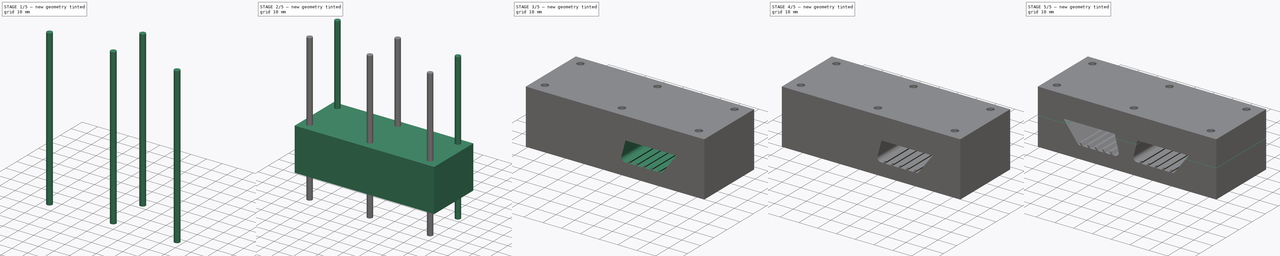
[diagram: build sequence overview — one tinted view per stage of 5, left to right]
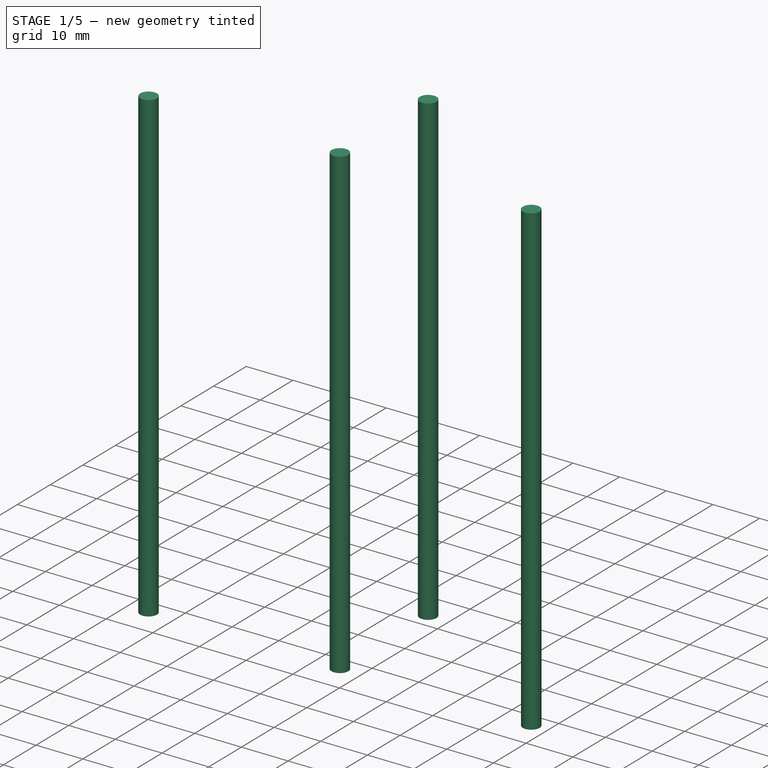
[diagram: stage 1 of 5 — iso view after this stage's code; geometry added in this stage tinted green]
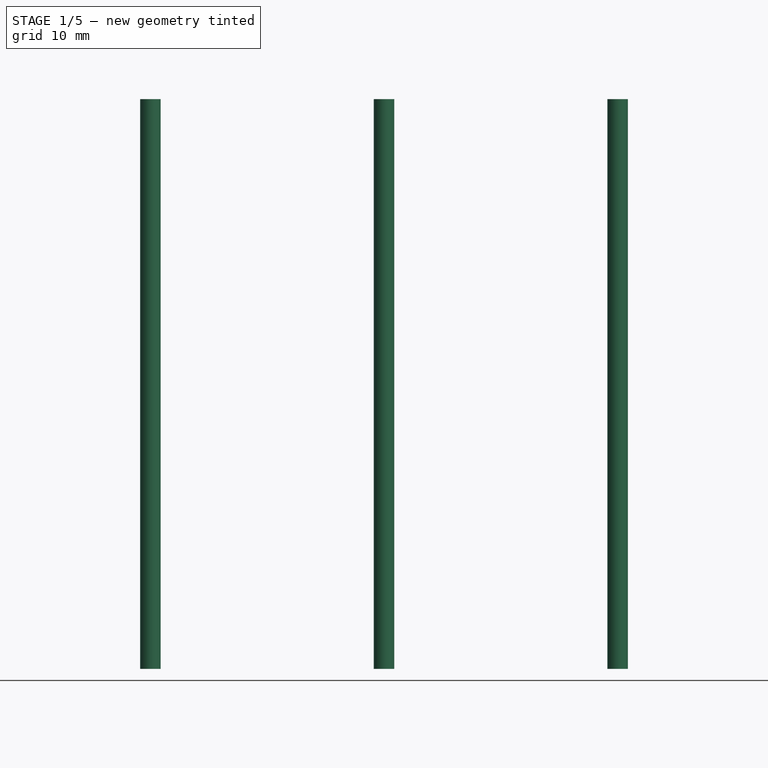
[diagram: stage 1 of 5 — front view after this stage's code; geometry added in this stage tinted green]
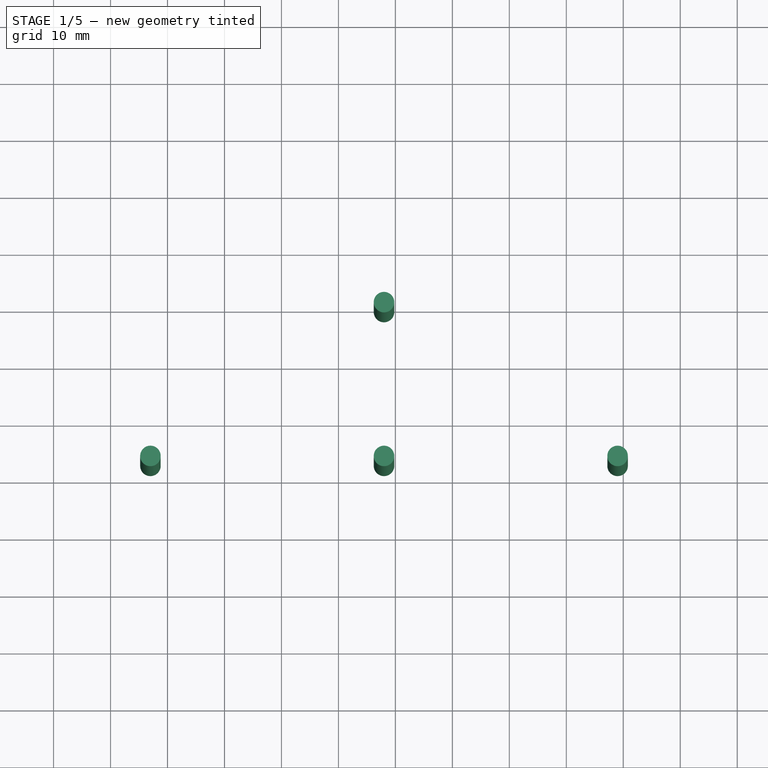
[diagram: stage 1 of 5 — top view after this stage's code; geometry added in this stage tinted green]
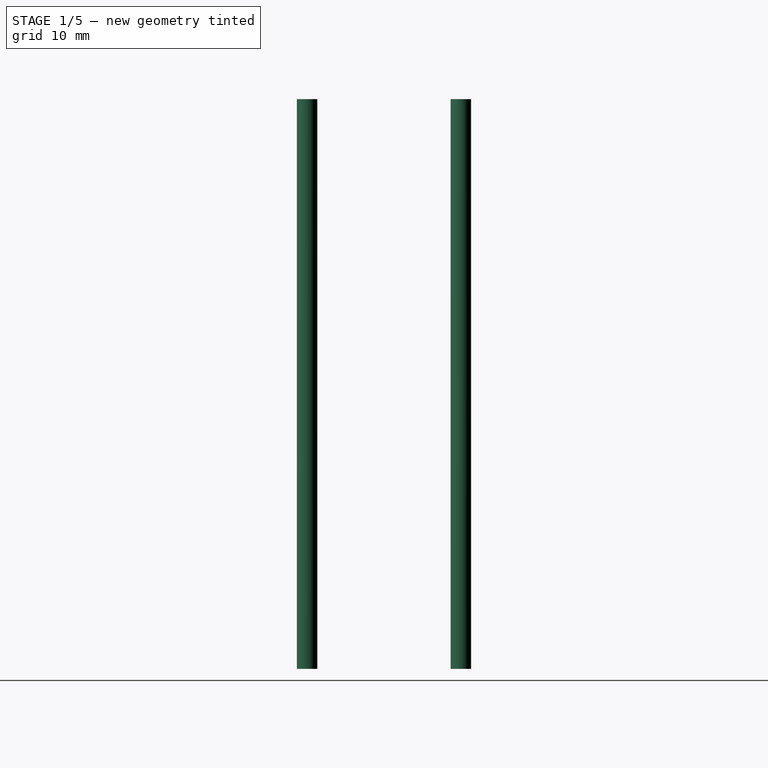
[diagram: stage 1 of 5 — right view after this stage's code; geometry added in this stage tinted green]
FCSTD DOCUMENT  (FreeCAD 0.15R4671 (Git))
Label: FEET_Mold
License: All rights reserved
LicenseURL: http://es.wikipedia.org/wiki/Todos_los_derechos_reservados
objects: Part::Cylinder×6, Part::MultiFuse×5, Part::Fillet×4, Part::Cut×4, Sketcher::SketchObject×3, PartDesign::Pad×3, Part::Box×2, Part::Mirroring×1
note: 31 computed .brp shape members not serialized (recipe doc carries the construction recipe); baked Part::Feature solids carry a one-line shape summary decoded from their .brp

FEATURE [Part::Cylinder] Cylinder002  label="Cilindro002"
  Angle = 360
  Height = 100
  Placement = pos=(38,0,-108) rot=(0,0,1;0rad)
  Radius = 1.8
FEATURE [Part::Cylinder] Cylinder003  label="Cilindro003"
  Angle = 360
  Height = 100
  Placement = pos=(-3,0,-108) rot=(0,0,1;0rad)
  Radius = 1.8
FEATURE [Part::Cylinder] Cylinder004  label="Cilindro004"
  Angle = 360
  Height = 100
  Placement = pos=(79,0,-108) rot=(0,0,1;0rad)
  Radius = 1.8
FEATURE [Part::Cylinder] Cylinder005  label="Cilindro005"
  Angle = 360
  Height = 100
  Placement = pos=(38,0,-108) rot=(0,0,1;0rad)
  Radius = 1.8
FEATURE [Part::MultiFuse] Fusion003
  Placement = pos=(0,-27,0) rot=(0,0,1;0rad)
  Shapes = -> [Cylinder004,Cylinder003,Cylinder005]
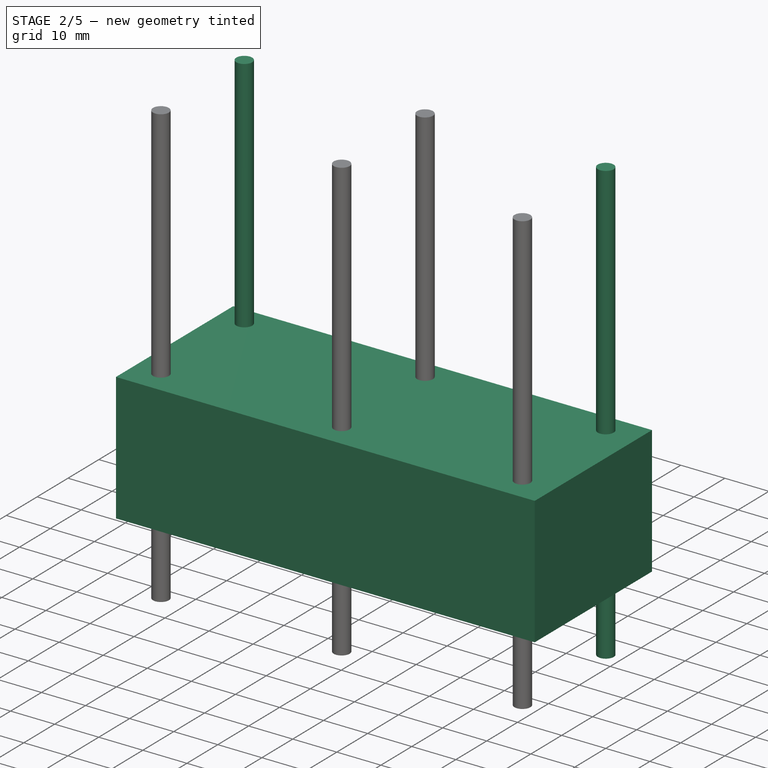
[diagram: stage 2 of 5 — iso view after this stage's code; geometry added in this stage tinted green]
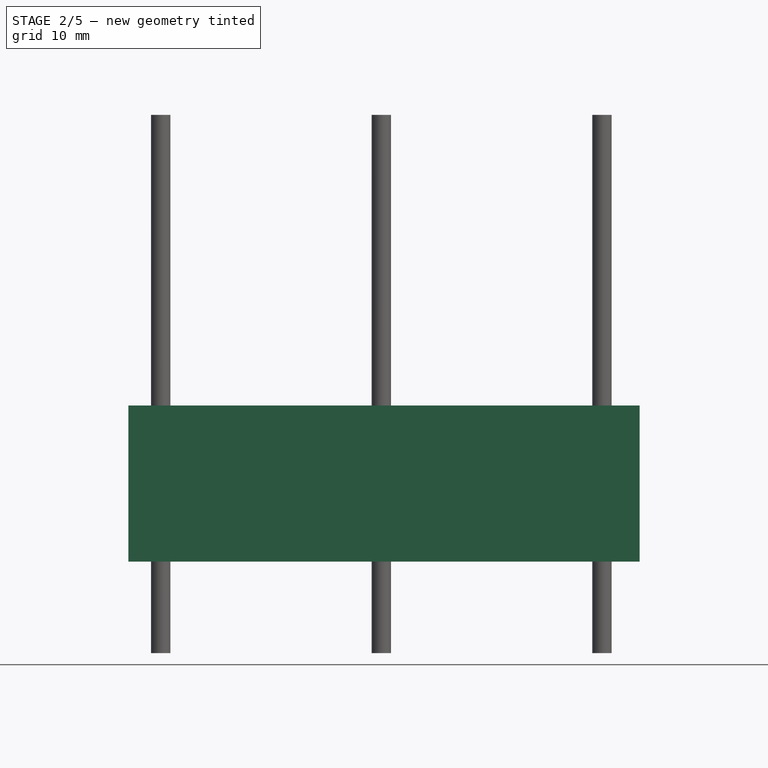
[diagram: stage 2 of 5 — front view after this stage's code; geometry added in this stage tinted green]
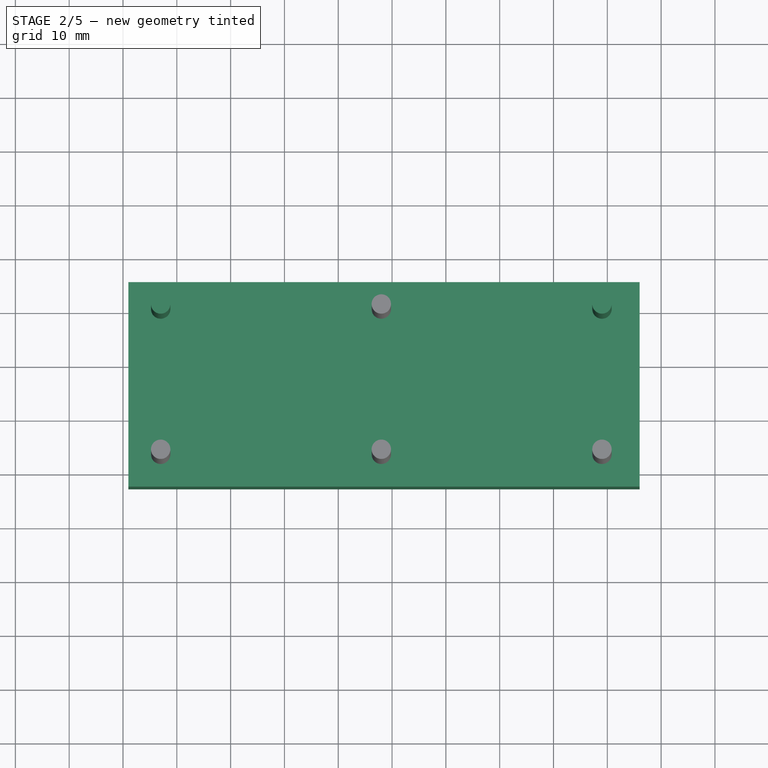
[diagram: stage 2 of 5 — top view after this stage's code; geometry added in this stage tinted green]
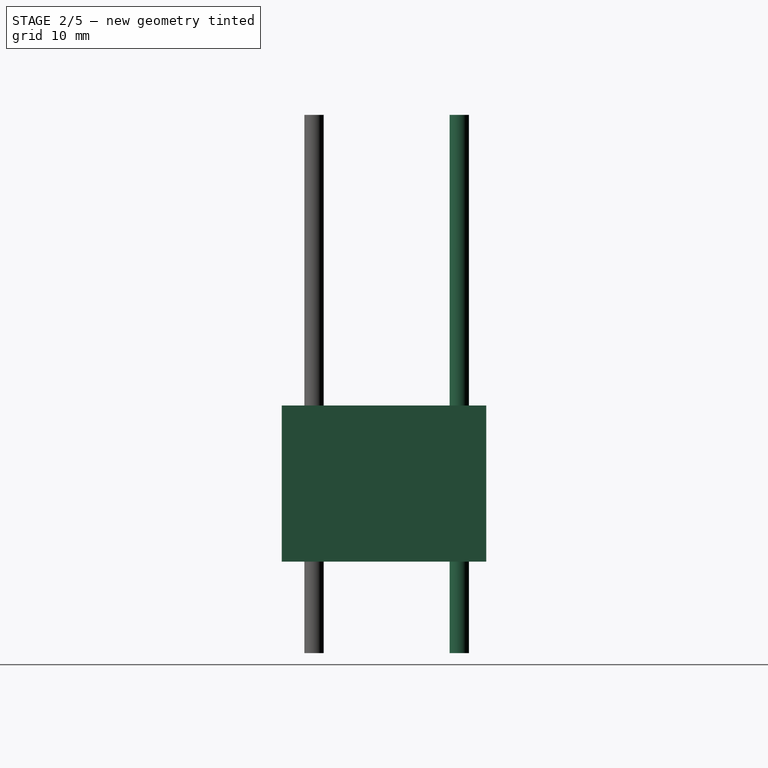
[diagram: stage 2 of 5 — right view after this stage's code; geometry added in this stage tinted green]
FEATURE [Part::Box] Box  label="Cubo"
  Height = 29
  Length = 95
  Placement = pos=(-9,-33,-91) rot=(0,0,1;0rad)
  Width = 38
FEATURE [Part::Cylinder] Cylinder  label="Cilindro"
  Angle = 360
  Height = 100
  Placement = pos=(-3,0,-108) rot=(0,0,1;0rad)
  Radius = 1.8
FEATURE [Part::Cylinder] Cylinder001  label="Cilindro001"
  Angle = 360
  Height = 100
  Placement = pos=(79,0,-108) rot=(0,0,1;0rad)
  Radius = 1.8
FEATURE [Part::MultiFuse] Fusion002
  Shapes = -> [Cylinder001,Cylinder,Cylinder002]
FEATURE [Part::MultiFuse] Fusion004
  Shapes = -> [Fusion003,Fusion002]
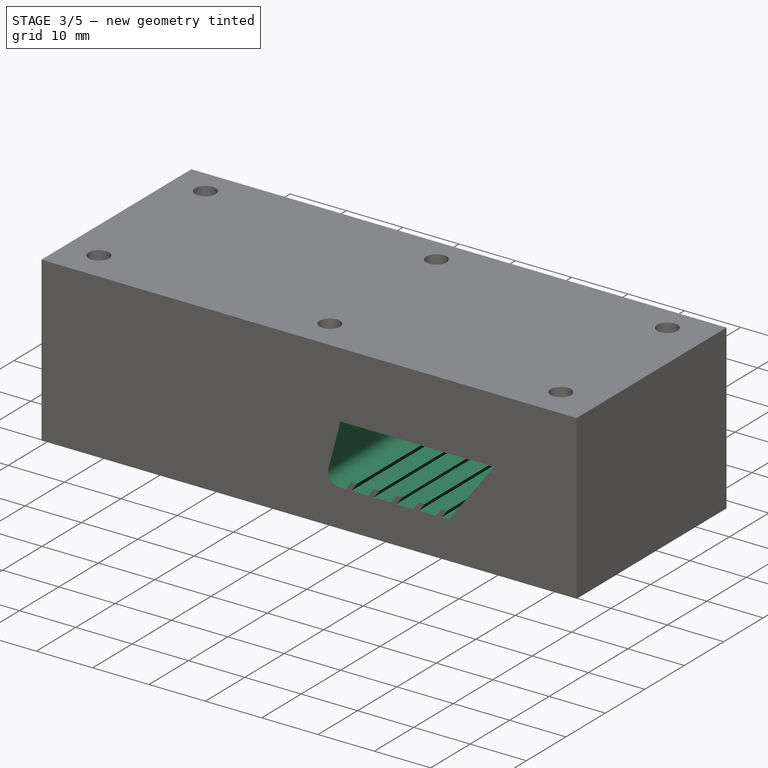
[diagram: stage 3 of 5 — iso view after this stage's code; geometry added in this stage tinted green]
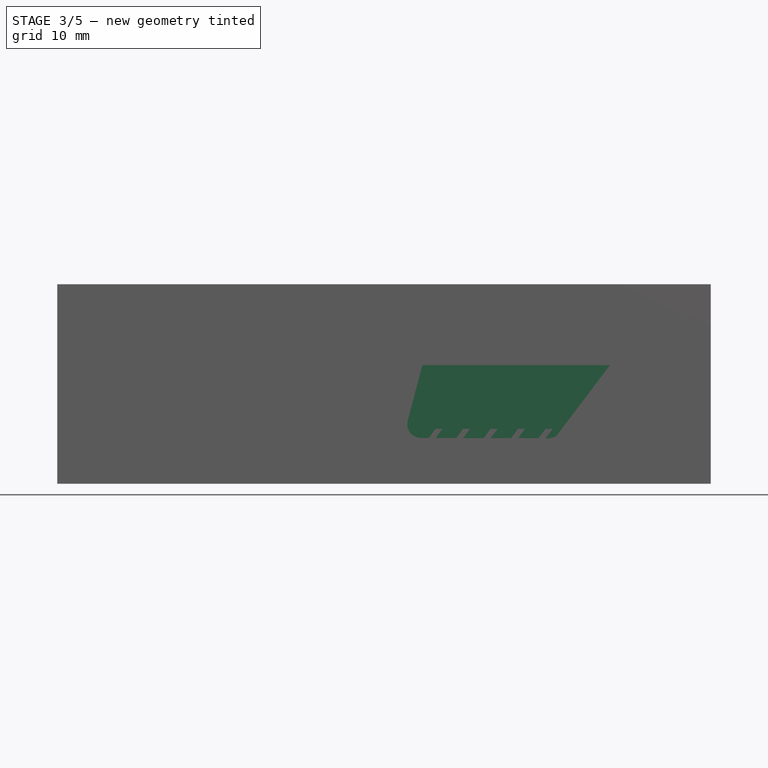
[diagram: stage 3 of 5 — front view after this stage's code; geometry added in this stage tinted green]
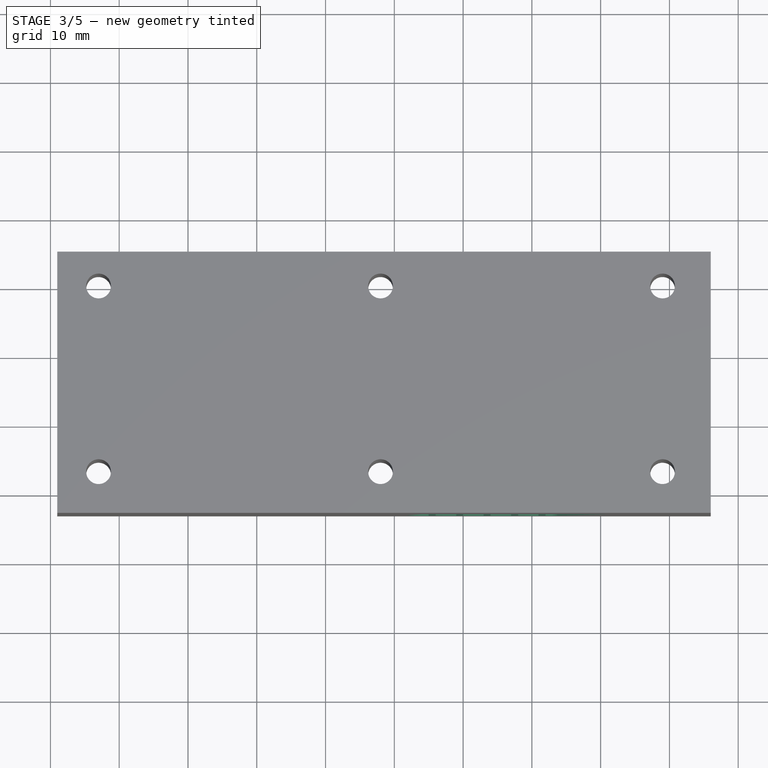
[diagram: stage 3 of 5 — top view after this stage's code; geometry added in this stage tinted green]
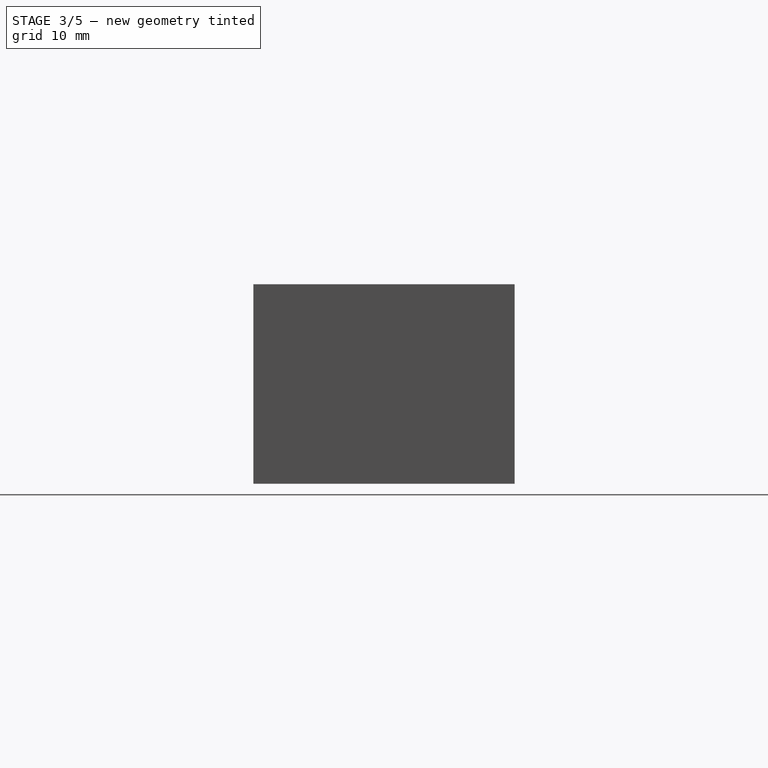
[diagram: stage 3 of 5 — right view after this stage's code; geometry added in this stage tinted green]
FEATURE [Sketcher::SketchObject] Sketch001
  Placement = pos=(-4,-7,0.4) rot=(1,0,0;1.5708rad)
  sketch-geometry (8):
    g0: LineSegment StartX=12.9217 StartY=-76.0433 StartZ=0 EndX=12.9217 EndY=-72.6813 EndZ=0
    g1: LineSegment StartX=12.9217 StartY=-72.6813 StartZ=0 EndX=10.907 EndY=-71.0645 EndZ=0
    g2: LineSegment StartX=10.907 StartY=-71.0645 StartZ=0 EndX=12.9496 EndY=-67.9874 EndZ=0
    g3: LineSegment StartX=12.9496 StartY=-67.9874 StartZ=0 EndX=17.8943 EndY=-67.9874 EndZ=0
    g4: LineSegment StartX=17.8943 StartY=-67.9874 StartZ=0 EndX=19.9533 EndY=-71.0124 EndZ=0
    g5: LineSegment StartX=19.9533 StartY=-71.0124 StartZ=0 EndX=17.9933 EndY=-72.6487 EndZ=0
    g6: LineSegment StartX=17.9933 StartY=-72.6487 StartZ=0 EndX=17.9811 EndY=-76.0433 EndZ=0
    g7: LineSegment StartX=17.9811 StartY=-76.0433 StartZ=0 EndX=12.9217 EndY=-76.0433 EndZ=0
  constraints (11):
    c: Vertical(g0)
    c: Coincident(g0,g1)
    c: Coincident(g1,g2)
    c: Coincident(g2,g3)
    c: Horizontal(g3)
    c: Coincident(g3,g4)
    c: Coincident(g4,g5)
    c: Coincident(g6,g7)
    c: Coincident(g7,g0)
    c: Horizontal(g7)
    c: Coincident(g5,g6)
FEATURE [PartDesign::Pad] Pad001
  Length = 20
  Length2 = 100
  Placement = pos=(-4,-7,0.4) rot=(1,0,0;1.5708rad)
  Sketch = -> Sketch001
  Type = 0
FEATURE [Sketcher::SketchObject] Sketch002
  Placement = pos=(10,-7,0.4) rot=(1,0,0;1.5708rad)
  sketch-geometry (8):
    g0: LineSegment StartX=12.9217 StartY=-76.0433 StartZ=0 EndX=12.9217 EndY=-72.6813 EndZ=0
    g1: LineSegment StartX=12.9217 StartY=-72.6813 StartZ=0 EndX=10.907 EndY=-71.0645 EndZ=0
    g2: LineSegment StartX=10.907 StartY=-71.0645 StartZ=0 EndX=12.9496 EndY=-67.9874 EndZ=0
    g3: LineSegment StartX=12.9496 StartY=-67.9874 StartZ=0 EndX=17.8943 EndY=-67.9874 EndZ=0
    g4: LineSegment StartX=17.8943 StartY=-67.9874 StartZ=0 EndX=19.9533 EndY=-71.0124 EndZ=0
    g5: LineSegment StartX=19.9533 StartY=-71.0124 StartZ=0 EndX=17.9933 EndY=-72.6487 EndZ=0
    g6: LineSegment StartX=17.9933 StartY=-72.6487 StartZ=0 EndX=17.9811 EndY=-76.0433 EndZ=0
    g7: LineSegment StartX=17.9811 StartY=-76.0433 StartZ=0 EndX=12.9217 EndY=-76.0433 EndZ=0
  constraints (11):
    c: Vertical(g0)
    c: Coincident(g0,g1)
    c: Coincident(g1,g2)
    c: Coincident(g2,g3)
    c: Horizontal(g3)
    c: Coincident(g3,g4)
    c: Coincident(g4,g5)
    c: Coincident(g6,g7)
    c: Coincident(g7,g0)
    c: Horizontal(g7)
    c: Coincident(g5,g6)
FEATURE [PartDesign::Pad] Pad002
  Length = 20
  Length2 = 100
  Placement = pos=(10,-7,0.4) rot=(1,0,0;1.5708rad)
  Sketch = -> Sketch002
  Type = 0
FEATURE [Part::Mirroring] Part__Mirroring  label="Fillet024 (Mirror #18)"
  Base = (0,0,0)
  Normal = (1,0,0)
  Placement = pos=(76,0,0) rot=(0,0,1;0rad)
FEATURE [Part::Cut] Cut
  Base = -> Box
  Tool = -> Fusion004
FEATURE [Part::Cut] Cut001
  Base = -> Cut
  Tool = -> Part__Mirroring
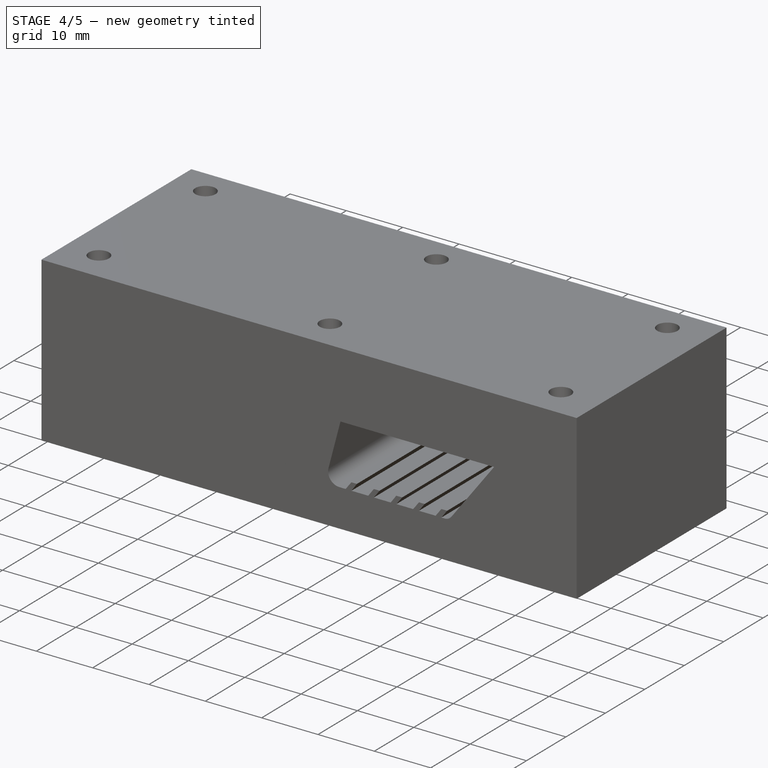
[diagram: stage 4 of 5 — iso view after this stage's code; geometry added in this stage tinted green]
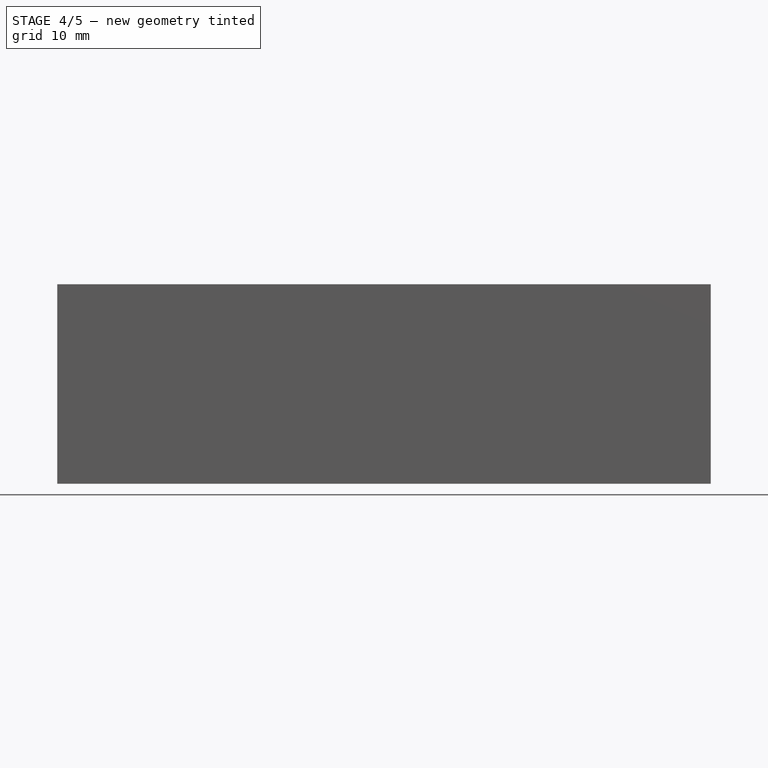
[diagram: stage 4 of 5 — front view after this stage's code; geometry added in this stage tinted green]
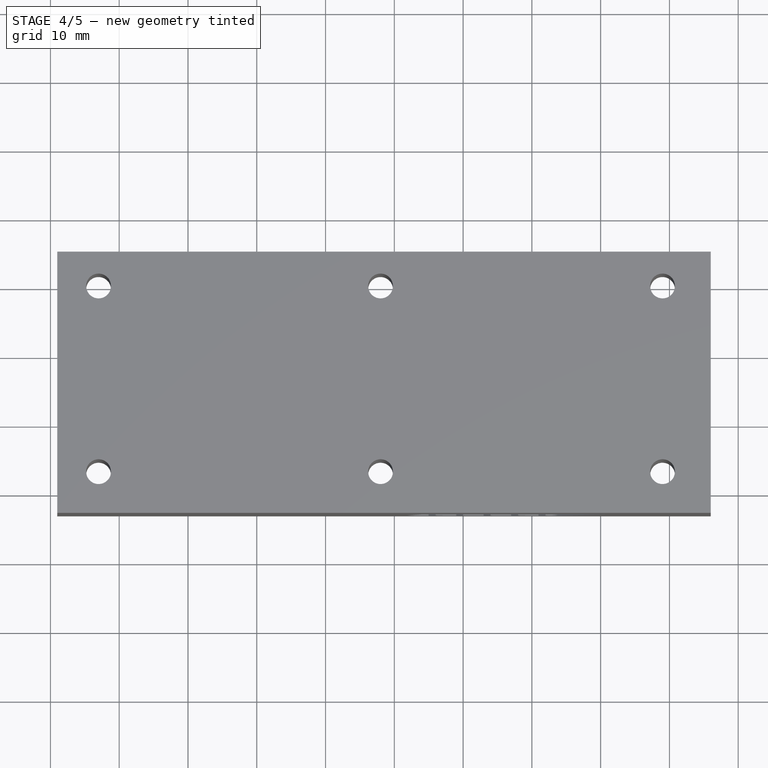
[diagram: stage 4 of 5 — top view after this stage's code; geometry added in this stage tinted green]
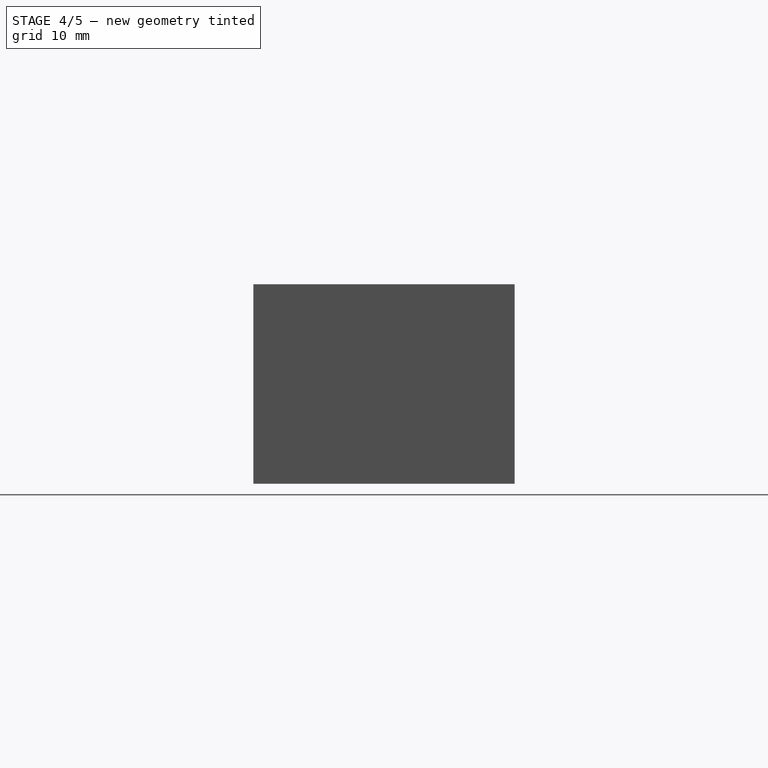
[diagram: stage 4 of 5 — right view after this stage's code; geometry added in this stage tinted green]
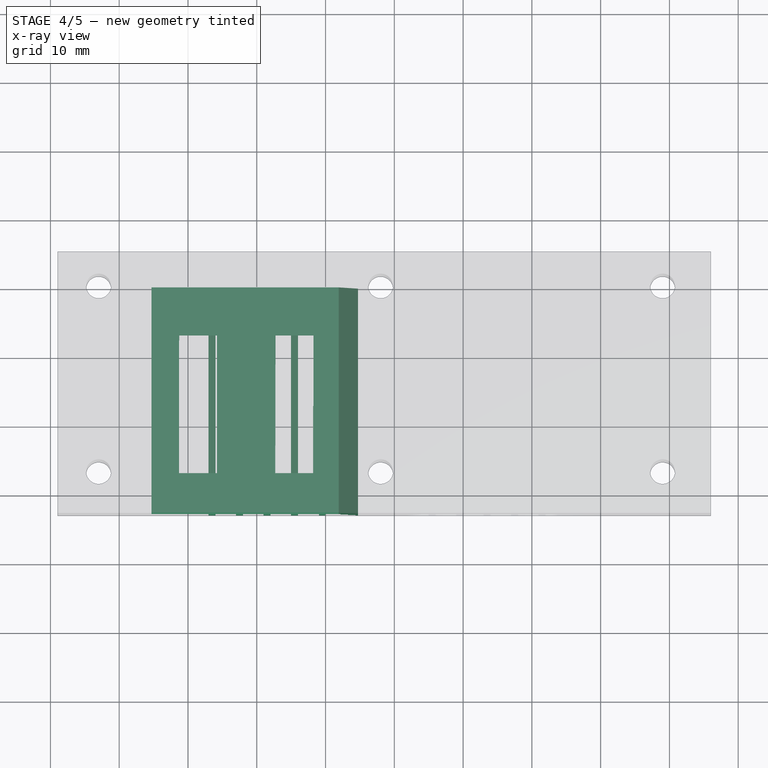
[diagram: stage 4 of 5 — x-ray composite at the top view; earlier geometry ghosted, this stage's added geometry solid]
FEATURE [Sketcher::SketchObject] Sketch
  Placement = pos=(0,0,0) rot=(1,0,0;1.5708rad)
  sketch-geometry (24):
    g0: LineSegment StartX=31.9221 StartY=-73.7642 StartZ=0 EndX=34.7157 EndY=-84.3474 EndZ=0
    g1: LineSegment StartX=34.7157 StartY=-84.3474 StartZ=0 EndX=31.0042 EndY=-84.3474 EndZ=0
    g2: LineSegment StartX=31.0042 StartY=-84.3474 StartZ=0 EndX=29.9949 EndY=-83.0102 EndZ=0
    g3: LineSegment StartX=29.9949 StartY=-83.0102 StartZ=0 EndX=29.0048 EndY=-82.9974 EndZ=0
    g4: LineSegment StartX=29.0048 StartY=-82.9974 StartZ=0 EndX=29.9744 EndY=-84.3565 EndZ=0
    g5: LineSegment StartX=29.9744 StartY=-84.3565 StartZ=0 EndX=27.0013 EndY=-84.3565 EndZ=0
    g6: LineSegment StartX=27.0013 StartY=-84.3565 StartZ=0 EndX=25.9942 EndY=-83.0138 EndZ=0
    g7: LineSegment StartX=25.9942 StartY=-83.0138 StartZ=0 EndX=24.9776 EndY=-83.0138 EndZ=0
    g8: LineSegment StartX=24.9776 StartY=-83.0138 StartZ=0 EndX=26.0038 EndY=-84.3756 EndZ=0
    g9: LineSegment StartX=26.0038 StartY=-84.3756 StartZ=0 EndX=23.0075 EndY=-84.3756 EndZ=0
    g10: LineSegment StartX=23.0075 StartY=-84.3756 StartZ=0 EndX=22.0197 EndY=-83.0236 EndZ=0
    g11: LineSegment StartX=22.0197 StartY=-83.0236 StartZ=0 EndX=20.9743 EndY=-83.0236 EndZ=0
    g12: LineSegment StartX=20.9743 StartY=-83.0236 StartZ=0 EndX=22.0005 EndY=-84.3663 EndZ=0
    g13: LineSegment StartX=22.0005 StartY=-84.3663 StartZ=0 EndX=19.0178 EndY=-84.3663 EndZ=0
    g14: LineSegment StartX=19.0178 StartY=-84.3663 StartZ=0 EndX=17.9916 EndY=-83.0045 EndZ=0
    g15: LineSegment StartX=17.9916 StartY=-83.0045 StartZ=0 EndX=16.9846 EndY=-83.0045 EndZ=0
    g16: LineSegment StartX=16.9846 StartY=-83.0045 StartZ=0 EndX=18.0012 EndY=-84.3663 EndZ=0
    g17: LineSegment StartX=18.0012 StartY=-84.3663 StartZ=0 EndX=15.0322 EndY=-84.3663 EndZ=0
    g18: LineSegment StartX=15.0322 StartY=-84.3663 StartZ=0 EndX=14.0131 EndY=-83.0204 EndZ=0
    g19: LineSegment StartX=14.0131 StartY=-83.0204 StartZ=0 EndX=12.9823 EndY=-83.0204 EndZ=0
    g20: LineSegment StartX=12.9823 StartY=-83.0204 StartZ=0 EndX=14.0014 EndY=-84.3792 EndZ=0
    g21: LineSegment StartX=14.0014 StartY=-84.3792 StartZ=0 EndX=12.6817 EndY=-84.3792 EndZ=0
    g22: LineSegment StartX=12.6817 StartY=-84.3792 StartZ=0 EndX=4.6509 EndY=-73.7642 EndZ=0
    g23: LineSegment StartX=4.6509 StartY=-73.7642 StartZ=0 EndX=31.9221 EndY=-73.7642 EndZ=0
  constraints (35):
    c: Coincident(g0,g1)
    c: Horizontal(g1)
    c: Coincident(g1,g2)
    c: Coincident(g2,g3)
    c: Coincident(g3,g4)
    c: Coincident(g4,g5)
    c: Horizontal(g5)
    c: Coincident(g5,g6)
    c: Coincident(g6,g7)
    c: Horizontal(g7)
    c: Coincident(g7,g8)
    c: Coincident(g8,g9)
    c: Horizontal(g9)
    c: Coincident(g9,g10)
    c: Coincident(g10,g11)
    c: Horizontal(g11)
    c: Coincident(g11,g12)
    c: Coincident(g12,g13)
    c: Horizontal(g13)
    c: Coincident(g13,g14)
    c: Coincident(g14,g15)
    c: Horizontal(g15)
    c: Coincident(g15,g16)
    c: Coincident(g16,g17)
    c: Horizontal(g17)
    c: Coincident(g17,g18)
    c: Coincident(g18,g19)
    c: Horizontal(g19)
    c: Coincident(g19,g20)
    c: Coincident(g20,g21)
    c: Horizontal(g21)
    c: Coincident(g21,g22)
    c: Coincident(g22,g23)
    c: Coincident(g23,g0)
    c: Horizontal(g23)
FEATURE [PartDesign::Pad] Pad
  Length = 33
  Length2 = 100
  Placement = pos=(0,0,0) rot=(1,0,0;1.5708rad)
  Sketch = -> Sketch
  Type = 0
FEATURE [Part::MultiFuse] Fusion
  Shapes = -> [Pad001,Pad]
FEATURE [Part::MultiFuse] Fusion001
  Shapes = -> [Fusion,Pad002]
FEATURE [Part::Fillet] Fillet
  Base = -> Fusion001
  Edges = 8 edges r=1: [Edge2,Edge8,Edge30,Edge32,Edge117,Edge118,Edge119,Edge120]
FEATURE [Part::Fillet] Fillet001
  Base = -> Fillet
  Edges = 4 edges r=0.4: [Edge19,Edge32,Edge39,Edge40]
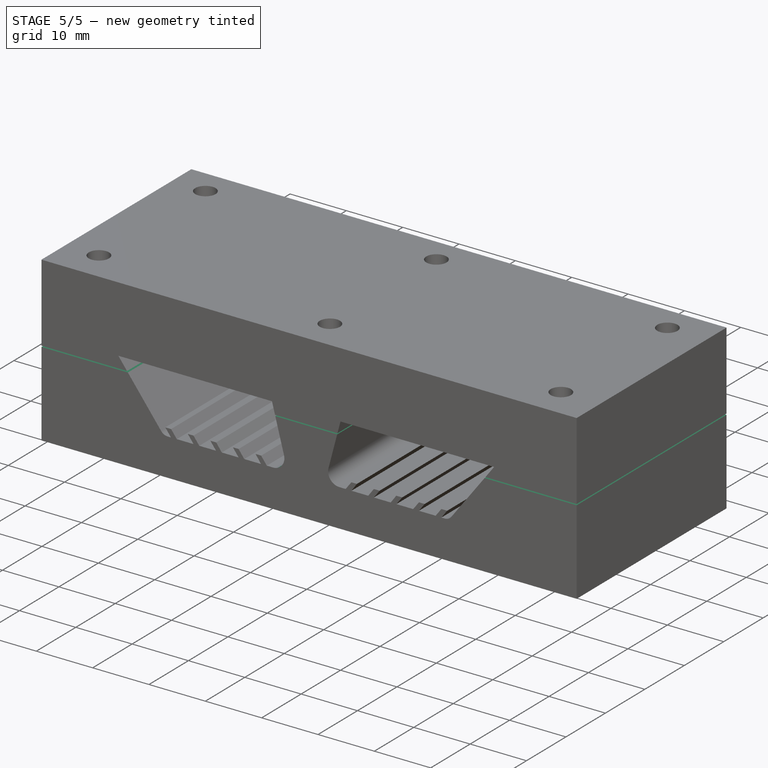
[diagram: stage 5 of 5 — iso view after this stage's code; geometry added in this stage tinted green]
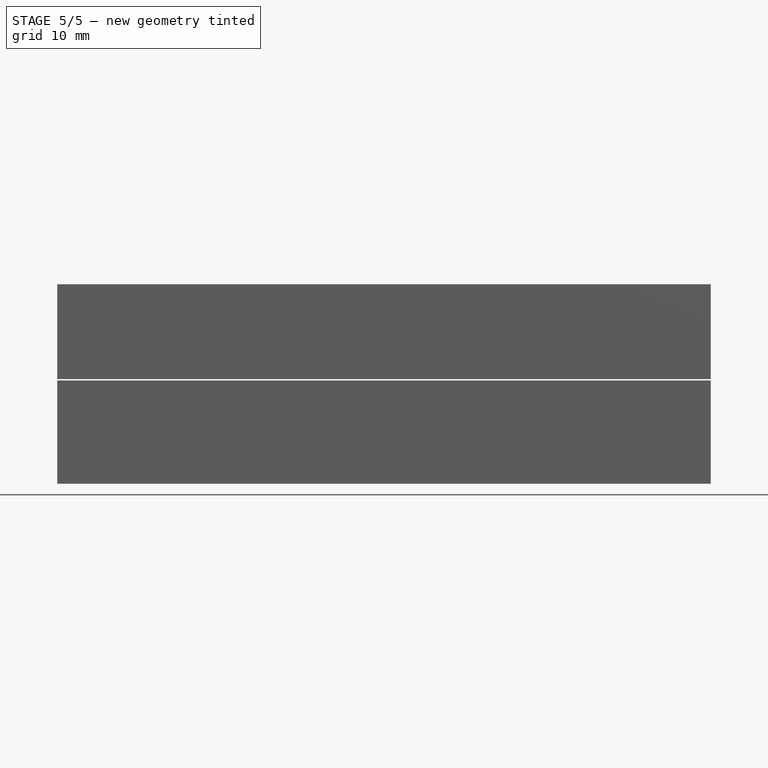
[diagram: stage 5 of 5 — front view after this stage's code; geometry added in this stage tinted green]
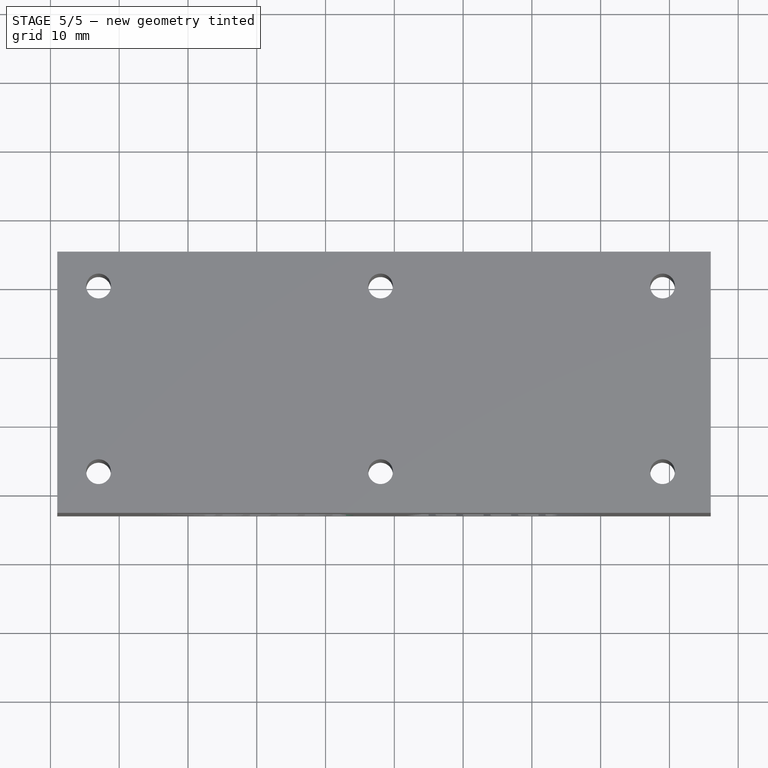
[diagram: stage 5 of 5 — top view after this stage's code; geometry added in this stage tinted green]
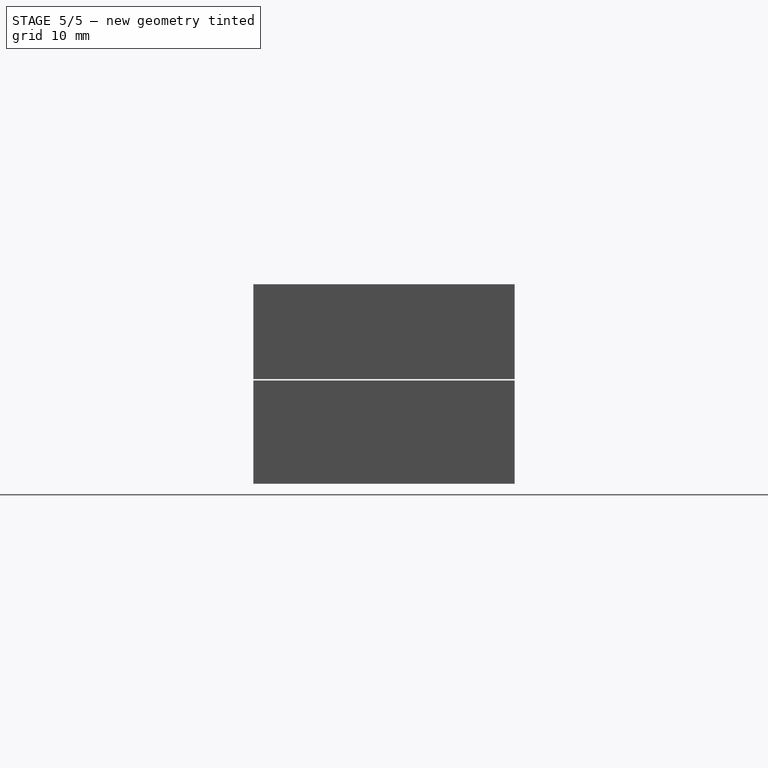
[diagram: stage 5 of 5 — right view after this stage's code; geometry added in this stage tinted green]
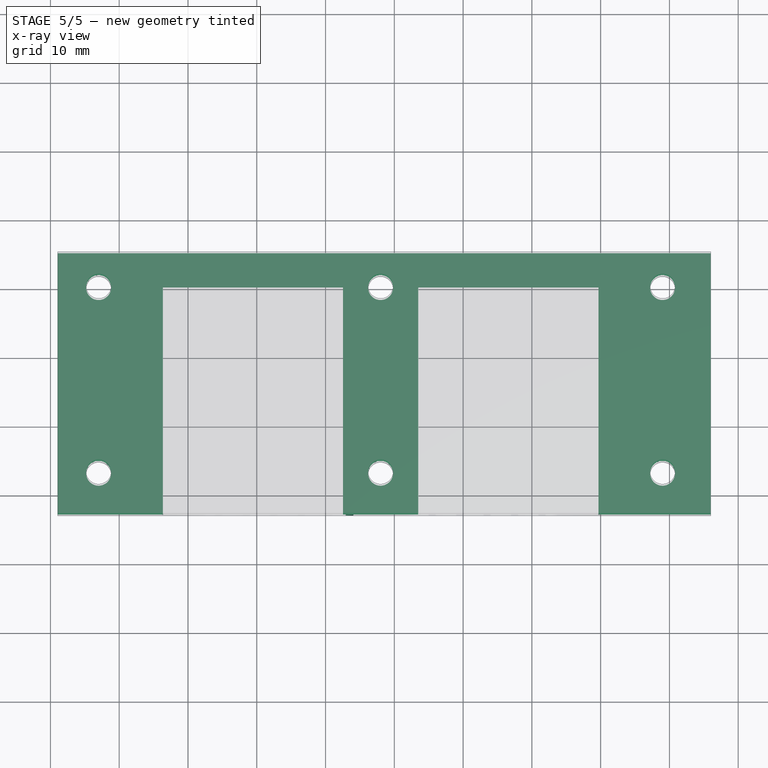
[diagram: stage 5 of 5 — x-ray composite at the top view; earlier geometry ghosted, this stage's added geometry solid]
FEATURE [Part::Fillet] Fillet002
  Base = -> Fillet001
  Edges = 1 edges r=1.5: [Edge59]
FEATURE [Part::Fillet] Fillet003
  Base = -> Fillet002
  Edges = 1 edges r=2: [Edge75]
FEATURE [Part::Box] Box001  label="Cubo001"
  Height = 0.2
  Length = 106
  Placement = pos=(-12,-36,-76) rot=(0,0,1;0rad)
  Width = 49
FEATURE [Part::Cut] Cut002
  Base = -> Cut001
  Tool = -> Fillet003
FEATURE [Part::Cut] Cut003
  Base = -> Cut002
  Tool = -> Box001
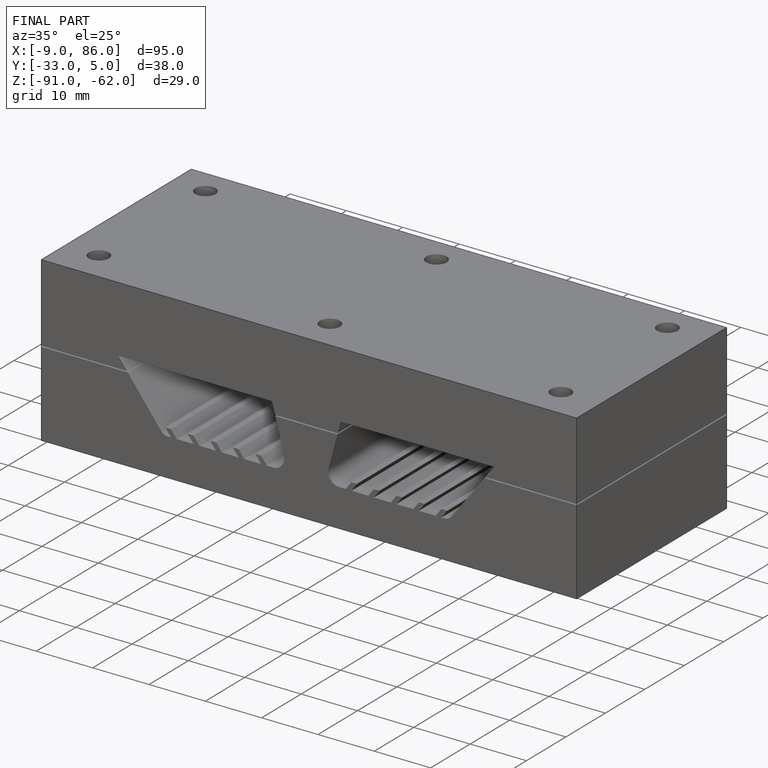
[diagram: finished part — iso view with bounding-box wireframe]
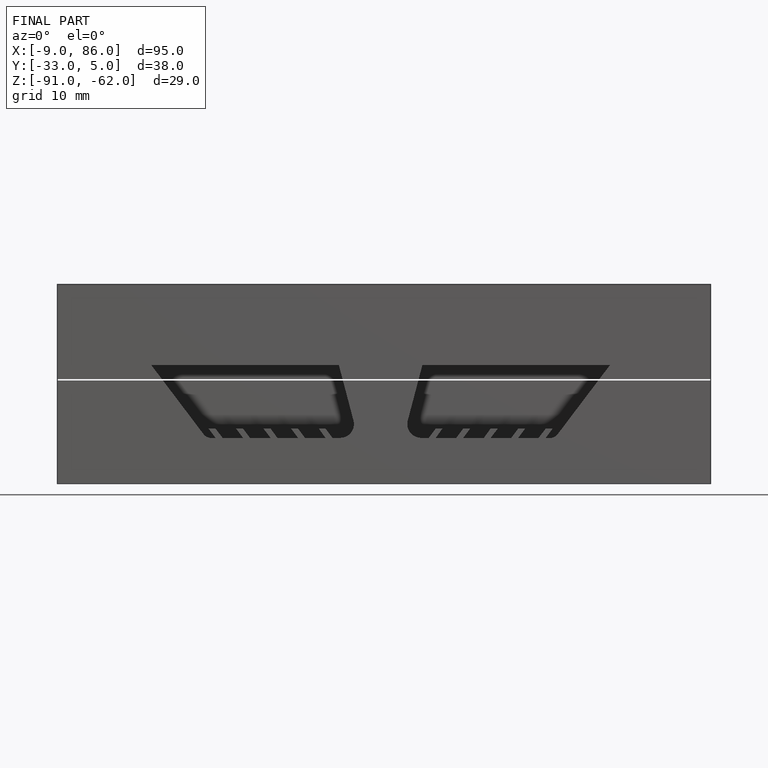
[diagram: finished part — front view with bounding-box wireframe]
